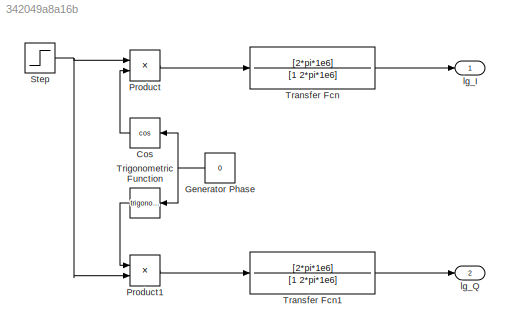
MODEL slx_342049a8a16b
KIND model
CONFIG AbsTol = auto
CONFIG EnableMultiTasking = off
CONFIG FixedStep = auto
CONFIG MaxStep = auto
CONFIG MinStep = auto
CONFIG RelTol = 1e-3
CONFIG SampleTimeConstraint = Unconstrained
CONFIG SolverName = VariableStepAuto
CONFIG StartTime = 0.0
CONFIG StopTime = 10.0
BLOCK [Trigonometry] Cos
  Operator = cos
BLOCK [Constant] Generator Phase
  Value = 0
BLOCK [Product] Product
BLOCK [Product] Product1
BLOCK [Step] Step
  SampleTime = 0
BLOCK [TransferFcn] Transfer Fcn
  Denominator = [1 2*pi*1e6]
  Numerator = [2*pi*1e6]
BLOCK [TransferFcn] Transfer Fcn1
  Denominator = [1 2*pi*1e6]
  Numerator = [2*pi*1e6]
BLOCK [Trigonometry] Trigonometric Function
BLOCK [Outport] lg_I
BLOCK [Outport] lg_Q
  Port = 2
LINE Cos:1 -> Product:2
NET Generator Phase:1 -> Cos:1, Trigonometric Function:1
LINE Product1:1 -> Transfer Fcn1:1
LINE Product:1 -> Transfer Fcn:1
NET Step:1 -> Product1:2, Product:1
LINE Transfer Fcn1:1 -> lg_Q:1
LINE Transfer Fcn:1 -> lg_I:1
LINE Trigonometric Function:1 -> Product1:1
note: NET lines group one-source signal fan-out (src -> all destinations, sorted); 1:1 wires keep LINE
